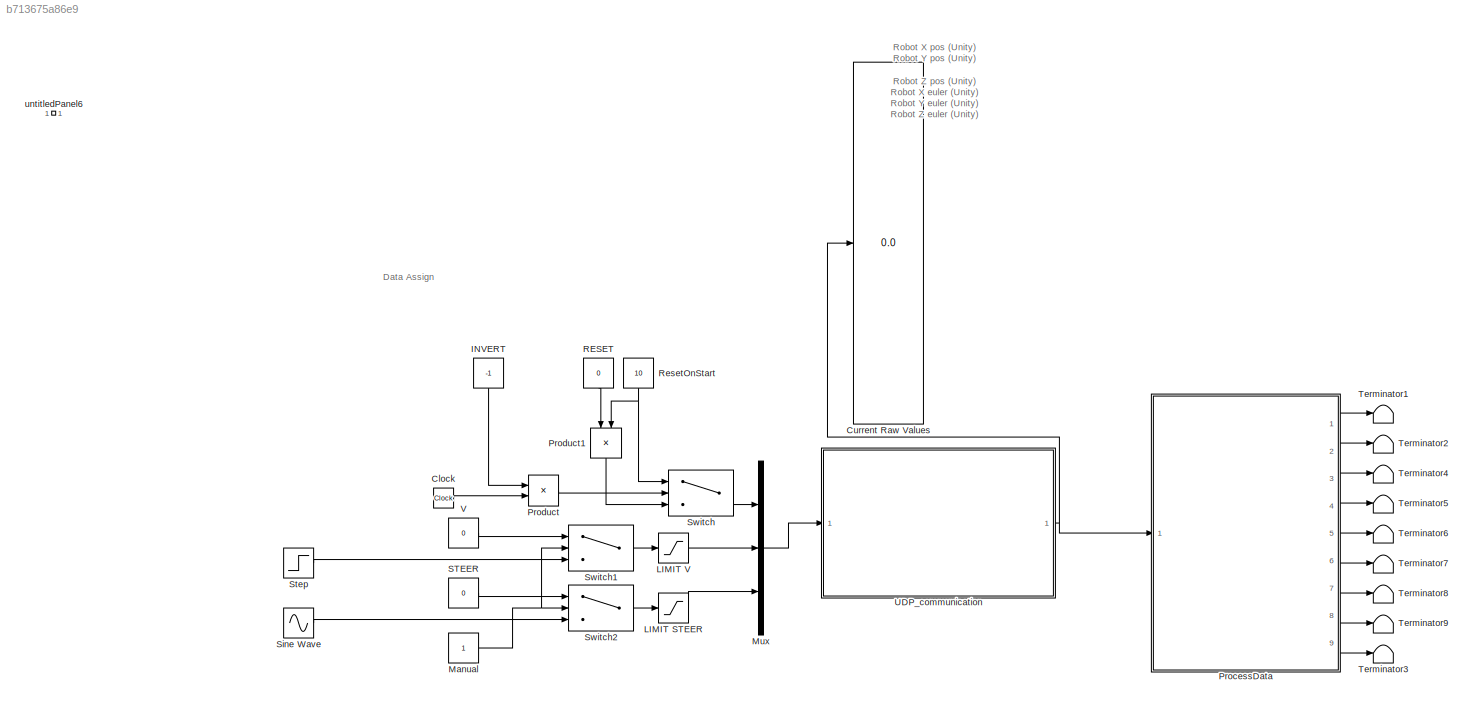
MODEL slx_b713675a86e9
KIND model
CONFIG AbsTol = auto
CONFIG EnableMultiTasking = off
CONFIG FixedStep = 1/model_frequency
CONFIG MaxStep = auto
CONFIG MinStep = auto
CONFIG RelTol = 1e-3
CONFIG SampleTimeConstraint = Unconstrained
CONFIG SolverName = FixedStepAuto
CONFIG StartTime = 0.0
CONFIG StopTime = inf
BLOCK [Clock] Clock
BLOCK [Display] Current Raw Values
  Decimation = 1
  NameLocation = top
  Ports = [1]
BLOCK [Constant] INVERT
  NameLocation = right
  Value = -1
BLOCK [Saturate] LIMIT STEER
  LowerLimit = steerLim(1)
  UpperLimit = steerLim(2)
BLOCK [Saturate] LIMIT V
  LowerLimit = velLim(1)
  UpperLimit = velLim(2)
BLOCK [Constant] Manual
BLOCK [Mux] Mux
  DisplayOption = bar
  Inputs = 3
  Ports = [3, 1]
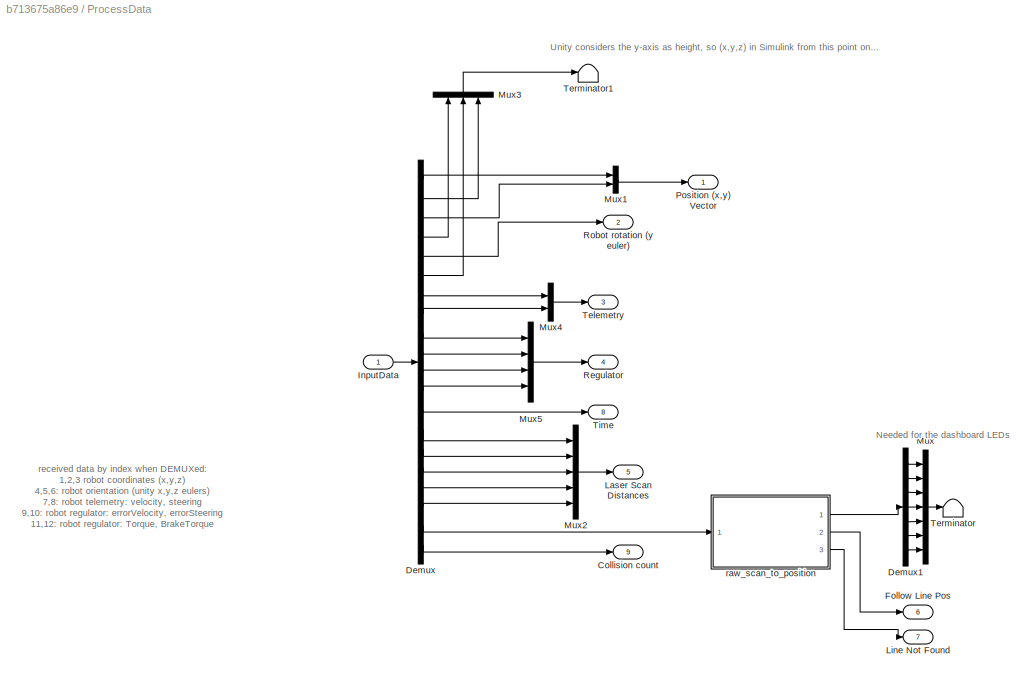
BLOCK [SubSystem] ProcessData
  Ports = [1, 9]
  RequestExecContextInheritance = off
BLOCK [Outport] ProcessData/Collision count
  NameLocation = top
  Port = 9
BLOCK [Demux] ProcessData/Demux
  Outputs = 20
  Ports = [1, 20]
BLOCK [Demux] ProcessData/Demux1
  Outputs = 7
  Ports = [1, 7]
BLOCK [Outport] ProcessData/Follow Line Pos
  NameLocation = top
  Port = 6
BLOCK [Inport] ProcessData/InputData
BLOCK [Outport] ProcessData/Laser Scan Distances
  Port = 5
BLOCK [Outport] ProcessData/Line Not Found
  Port = 7
BLOCK [Mux] ProcessData/Mux
  DisplayOption = bar
  Inputs = 7
  Ports = [7, 1]
BLOCK [Mux] ProcessData/Mux1
  DisplayOption = bar
  Inputs = 2
  Ports = [2, 1]
BLOCK [Mux] ProcessData/Mux2
  DisplayOption = bar
  Inputs = 5
  Ports = [5, 1]
BLOCK [Mux] ProcessData/Mux3
  DisplayOption = bar
  Inputs = 3
  NameLocation = right
  Ports = [3, 1]
BLOCK [Mux] ProcessData/Mux4
  DisplayOption = bar
  Inputs = 2
  Ports = [2, 1]
BLOCK [Mux] ProcessData/Mux5
  DisplayOption = bar
  Ports = [4, 1]
BLOCK [Outport] ProcessData/Position (x,y) Vector
  NameLocation = top
BLOCK [Outport] ProcessData/Regulator
  Port = 4
BLOCK [Outport] ProcessData/Robot rotation (y euler)
  NameLocation = top
  Port = 2
BLOCK [Outport] ProcessData/Telemetry
  Port = 3
BLOCK [Terminator] ProcessData/Terminator
BLOCK [Terminator] ProcessData/Terminator1
BLOCK [Outport] ProcessData/Time
  Port = 8
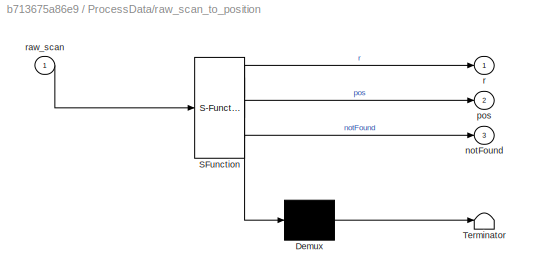
BLOCK [SubSystem] ProcessData/raw_scan_to_position
  ErrorFcn = Stateflow.Translate.translate
  PermitHierarchicalResolution = ExplicitOnly
  Ports = [1, 3]
  RequestExecContextInheritance = off
  SFBlockType = MATLAB Function
  TreatAsAtomicUnit = on
BLOCK [Demux] ProcessData/raw_scan_to_position/ Demux 
  Outputs = 1
  Ports = [1, 1]
BLOCK [S-Function] ProcessData/raw_scan_to_position/ SFunction 
  EnableBusSupport = on
  FunctionName = sf_sfun
  Parameters = rayDistance
  PortCounts = [1 4]
  Ports = [1, 4]
  SFcnIsStateOwnerBlock = off
  SFunctionDeploymentMode = off
  Tag = Stateflow S-Function 2
BLOCK [Terminator] ProcessData/raw_scan_to_position/ Terminator 
BLOCK [Outport] ProcessData/raw_scan_to_position/notFound
  Port = 3
BLOCK [Outport] ProcessData/raw_scan_to_position/pos
  Port = 2
BLOCK [Outport] ProcessData/raw_scan_to_position/r
BLOCK [Inport] ProcessData/raw_scan_to_position/raw_scan
BLOCK [Product] Product
  Ports = [2, 1]
BLOCK [Product] Product1
  NameLocation = left
  Ports = [2, 1]
BLOCK [Constant] RESET
  NameLocation = left
  Value = 0
BLOCK [Constant] ResetOnStart
  NameLocation = right
  Value = 10
BLOCK [Constant] STEER
  Value = 0
BLOCK [Sin] Sine Wave
  Amplitude = 40
  Frequency = 0.2
  Ports = [0, 1]
  SampleTime = 0
BLOCK [Step] Step
  SampleTime = 0
  Time = 2
BLOCK [Switch] Switch
  Criteria = u2 > Threshold
  InputSameDT = off
  SaturateOnIntegerOverflow = off
  Threshold = -0.5
BLOCK [Switch] Switch1
  InputSameDT = off
  SaturateOnIntegerOverflow = off
  Threshold = 0.5
BLOCK [Switch] Switch2
  InputSameDT = off
  SaturateOnIntegerOverflow = off
  Threshold = 0.5
BLOCK [Terminator] Terminator1
BLOCK [Terminator] Terminator2
BLOCK [Terminator] Terminator3
BLOCK [Terminator] Terminator4
BLOCK [Terminator] Terminator5
BLOCK [Terminator] Terminator6
BLOCK [Terminator] Terminator7
BLOCK [Terminator] Terminator8
BLOCK [Terminator] Terminator9
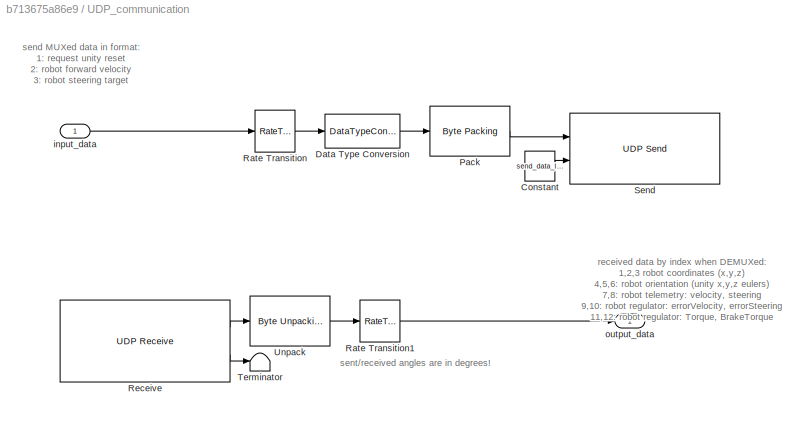
BLOCK [SubSystem] UDP_communication
  Ports = [1, 1]
  RequestExecContextInheritance = off
BLOCK [Constant] UDP_communication/Constant
  Value = send_data_length
BLOCK [DataTypeConversion] UDP_communication/Data Type Conversion
  OutDataTypeStr = single
  RndMeth = Floor
  SaturateOnIntegerOverflow = off
BLOCK [Reference] UDP_communication/Pack  REF=slrealtimeutilitieslib/Byte Packing
  Ports = [1, 1]
  SourceBlock = slrealtimeutilitieslib/Byte Packing
  SourceProductBaseCode = XP
  SourceType = slrealtimebytepacking
BLOCK [RateTransition] UDP_communication/Rate Transition
BLOCK [RateTransition] UDP_communication/Rate Transition1
BLOCK [Reference] UDP_communication/Receive  REF=slrealtimeiplib/UDP Receive
  Ports = [0, 2]
  SourceBlock = slrealtimeiplib/UDP Receive
  SourceProductBaseCode = XP
  SourceType = slrealtimeudpreceive
BLOCK [Reference] UDP_communication/Send  REF=slrealtimeiplib/UDP Send
  Ports = [2]
  SourceBlock = slrealtimeiplib/UDP Send
  SourceProductBaseCode = XP
  SourceType = slrealtimeudpsend
BLOCK [Terminator] UDP_communication/Terminator
BLOCK [Reference] UDP_communication/Unpack  REF=slrealtimeutilitieslib/Byte Unpacking
  Ports = [1, 1]
  SourceBlock = slrealtimeutilitieslib/Byte Unpacking
  SourceProductBaseCode = XP
  SourceType = slreraltimebytepacking
BLOCK [Inport] UDP_communication/input_data
BLOCK [Outport] UDP_communication/output_data
BLOCK [Constant] V
  Value = 0
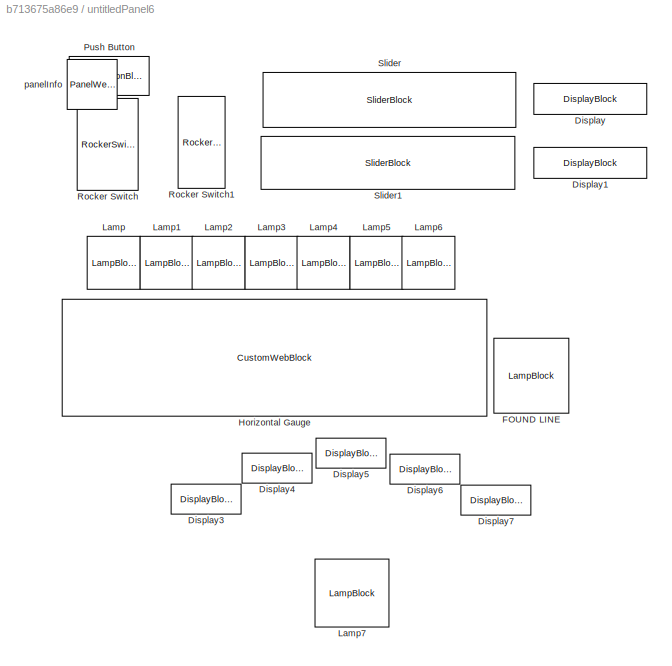
BLOCK [SubSystem] untitledPanel6
  IsWebBlockPanel = on
  Ports = []
  RequestExecContextInheritance = off
  Tag = HiddenForWebPanel
BLOCK [DisplayBlock] untitledPanel6/Display
  LabelPosition = Hide
  PanelInfo = {"panelId":"panelId-3b0286ef-9598-43d7-b16e-0edae3a5bc45","type":"panelChild","version":"2019b","zIndex":1500028}
  Tag = HiddenForWebPanel
  Transparency = 1
BLOCK [DisplayBlock] untitledPanel6/Display1
  LabelPosition = Hide
  PanelInfo = {"panelId":"panelId-3b0286ef-9598-43d7-b16e-0edae3a5bc45","type":"panelChild","version":"2019b","zIndex":1500030}
  Tag = HiddenForWebPanel
  Transparency = 1
BLOCK [DisplayBlock] untitledPanel6/Display3
  LabelPosition = Hide
  PanelInfo = {"panelId":"panelId-3b0286ef-9598-43d7-b16e-0edae3a5bc45","type":"panelChild","version":"2019b","zIndex":1500034}
  Tag = HiddenForWebPanel
  Transparency = 1
BLOCK [DisplayBlock] untitledPanel6/Display4
  LabelPosition = Hide
  PanelInfo = {"panelId":"panelId-3b0286ef-9598-43d7-b16e-0edae3a5bc45","type":"panelChild","version":"2019b","zIndex":1500036}
  Tag = HiddenForWebPanel
  Transparency = 1
BLOCK [DisplayBlock] untitledPanel6/Display5
  LabelPosition = Hide
  PanelInfo = {"panelId":"panelId-3b0286ef-9598-43d7-b16e-0edae3a5bc45","type":"panelChild","version":"2019b","zIndex":1500038}
  Tag = HiddenForWebPanel
  Transparency = 1
BLOCK [DisplayBlock] untitledPanel6/Display6
  LabelPosition = Hide
  PanelInfo = {"panelId":"panelId-3b0286ef-9598-43d7-b16e-0edae3a5bc45","type":"panelChild","version":"2019b","zIndex":1500040}
  Tag = HiddenForWebPanel
  Transparency = 1
BLOCK [DisplayBlock] untitledPanel6/Display7
  LabelPosition = Hide
  PanelInfo = {"panelId":"panelId-3b0286ef-9598-43d7-b16e-0edae3a5bc45","type":"panelChild","version":"2019b","zIndex":1500042}
  Tag = HiddenForWebPanel
  Transparency = 1
BLOCK [LampBlock] untitledPanel6/FOUND LINE
  NameLocation = top
  PanelInfo = {"panelId":"panelId-3b0286ef-9598-43d7-b16e-0edae3a5bc45","type":"panelChild","version":"2019b","zIndex":1500004}
  Tag = HiddenForWebPanel
BLOCK [CustomWebBlock] untitledPanel6/Horizontal Gauge
  Configuration = {"components":[{"name":"LinearScaleComponent","settings":{"bounds":{"max":0.3,"min":-0.3,"tickInterval":"auto"},"internalTickHeightScaleFactor":0.5,"labelColor":[250,245,199],"labelFont":{"font":"Arial","fontSize":12},"labelTransparency":1,"needleImage":{"size":[21,75],"src":"data:image\/svg+xml;base64,PHN2ZyB4bWxucz0iaHR0cDovL3d3dy53My5vcmcvMjAwMC9zdmciIHhtbG5zOnhsaW5rPSJodHRwOi8vd3d3LnczLm9yZy8x...<+3837ch>
  PanelInfo = {"panelId":"panelId-3b0286ef-9598-43d7-b16e-0edae3a5bc45","type":"panelChild","version":"2019b","zIndex":1500002}
  ShowInitialText = on
  Tag = HiddenForWebPanel
BLOCK [LampBlock] untitledPanel6/Lamp
  PanelInfo = {"panelId":"panelId-3b0286ef-9598-43d7-b16e-0edae3a5bc45","type":"panelChild","version":"2019b","zIndex":1500006}
  Tag = HiddenForWebPanel
BLOCK [LampBlock] untitledPanel6/Lamp1
  PanelInfo = {"panelId":"panelId-3b0286ef-9598-43d7-b16e-0edae3a5bc45","type":"panelChild","version":"2019b","zIndex":1500008}
  Tag = HiddenForWebPanel
BLOCK [LampBlock] untitledPanel6/Lamp2
  PanelInfo = {"panelId":"panelId-3b0286ef-9598-43d7-b16e-0edae3a5bc45","type":"panelChild","version":"2019b","zIndex":1500010}
  Tag = HiddenForWebPanel
BLOCK [LampBlock] untitledPanel6/Lamp3
  PanelInfo = {"panelId":"panelId-3b0286ef-9598-43d7-b16e-0edae3a5bc45","type":"panelChild","version":"2019b","zIndex":1500012}
  Tag = HiddenForWebPanel
BLOCK [LampBlock] untitledPanel6/Lamp4
  PanelInfo = {"panelId":"panelId-3b0286ef-9598-43d7-b16e-0edae3a5bc45","type":"panelChild","version":"2019b","zIndex":1500014}
  Tag = HiddenForWebPanel
BLOCK [LampBlock] untitledPanel6/Lamp5
  PanelInfo = {"panelId":"panelId-3b0286ef-9598-43d7-b16e-0edae3a5bc45","type":"panelChild","version":"2019b","zIndex":1500016}
  Tag = HiddenForWebPanel
BLOCK [LampBlock] untitledPanel6/Lamp6
  PanelInfo = {"panelId":"panelId-3b0286ef-9598-43d7-b16e-0edae3a5bc45","type":"panelChild","version":"2019b","zIndex":1500018}
  Tag = HiddenForWebPanel
BLOCK [LampBlock] untitledPanel6/Lamp7
  LabelPosition = Hide
  PanelInfo = {"panelId":"panelId-3b0286ef-9598-43d7-b16e-0edae3a5bc45","type":"panelChild","version":"2019b","zIndex":1500048}
  Tag = HiddenForWebPanel
BLOCK [PushButtonBlock] untitledPanel6/Push Button
  ButtonText = RESET
  OffValue = 0.000000
  PanelInfo = {"panelId":"panelId-3b0286ef-9598-43d7-b16e-0edae3a5bc45","type":"panelChild","version":"2019b","zIndex":1500022}
  Tag = HiddenForWebPanel
BLOCK [RockerSwitchBlock] untitledPanel6/Rocker Switch
  PanelInfo = {"panelId":"panelId-3b0286ef-9598-43d7-b16e-0edae3a5bc45","type":"panelChild","version":"2019b","zIndex":1500020}
  Tag = HiddenForWebPanel
BLOCK [RockerSwitchBlock] untitledPanel6/Rocker Switch1
  PanelInfo = {"panelId":"panelId-3b0286ef-9598-43d7-b16e-0edae3a5bc45","type":"panelChild","version":"2019b","zIndex":1500046}
  Tag = HiddenForWebPanel
BLOCK [SliderBlock] untitledPanel6/Slider
  PanelInfo = {"panelId":"panelId-3b0286ef-9598-43d7-b16e-0edae3a5bc45","type":"panelChild","version":"2019b","zIndex":1500024}
  ScaleMax = 5
  ScaleMin = -2
  Tag = HiddenForWebPanel
  TickInterval = 0.5
BLOCK [SliderBlock] untitledPanel6/Slider1
  PanelInfo = {"panelId":"panelId-3b0286ef-9598-43d7-b16e-0edae3a5bc45","type":"panelChild","version":"2019b","zIndex":1500026}
  ScaleMax = 30
  ScaleMin = -30
  Tag = HiddenForWebPanel
  TickInterval = 15
BLOCK [PanelWebBlock] untitledPanel6/panelInfo
  PanelInfo = {"compacted":false,"height":619,"isActiveTab":true,"labels":{"label2777103104":{"left":"434","settings":{"backgroundColor":"rgba(0, 0, 0, 0)","bold":true,"font":"Arial","fontColor":"black","fontSize":0.9,"italicized":false,"underlined":false},"text":"LINE FOUND?","top":"270"},"label4548952663":{"left":"178","settings":{"backgroundColor":"rgba(0, 0, 0, 0)","bold":true,"font":"Arial","fontColor":"bl...<+1412ch>
  PanelSnapshot = iVBORw0KGgoAAAANSUhEUgAAAmcAAAJrCAYAAAClcDRqAAAACXBIWXMAAA7EAAAOxAGVKw4bAAAgAElEQVR4nOzdd1QUV9sA8Gdmd7bvUpe29I4UAbFgQVHE3ruxa1SMGnuNvbfEWGP0jVGMsfeKvSP2iiLS61K395nvD4UPESkaQfD+zuEcnb1z587sAg/PbRi89+N1qiUGMB0AGgCAFSAIgiAIgiDVLQsDABh9nZoDAMtquDEIgiAIgiDfPex9xuwKDmAIcaDEvnw5jpNaDkmS9JpuHIIgCIIgyPcCx3E9iTOU9PddmViIA5Vdn5svIPUkjazp1iEIgiAIgnxnSJKkA6kW0OHdGDPw5ctppJ6kEQyGnMfnZ+I4rq/hNiIIgiAIgnw3SJKky2Uy...<+74092ch>
  Tag = HiddenForWebPanel
ANNOTATION (root): Robot X pos (Unity) Robot Y pos (Unity) Robot Z pos (Unity) Robot X euler (Unity) Robot Y euler (Unity) Robot Z euler (Unity) Telemetry: velocity Telemetry: steering Regulator: errorVelocity Regulator: errorSteering Regulator: Torque Regulator: BrakeTorque Unity sim time Lidar -60 Lidar -30 Lidar 0 Lidar +30 Lidar +60 Linefollow RawData Collision Count
ANNOTATION (root): Data Assign
ANNOTATION ProcessData: Unity considers the y-axis as height, so (x,y,z) in Simulink from this point onwards equals (x,z,y) in Unity
ANNOTATION ProcessData: received data by index when DEMUXed: 1,2,3 robot coordinates (x,y,z) 4,5,6: robot orientation (unity x,y,z eulers) 7,8: robot telemetry: velocity, steering 9,10: robot regulator: errorVelocity, errorSteering 11,12: robot regulator: Torque, BrakeTorque 13: Unity simulation time 14-18: Lidar results 19: Linefollow binary results
ANNOTATION ProcessData: Needed for the dashboard LEDs
ANNOTATION UDP_communication: received data by index when DEMUXed: 1,2,3 robot coordinates (x,y,z) 4,5,6: robot orientation (unity x,y,z eulers) 7,8: robot telemetry: velocity, steering 9,10: robot regulator: errorVelocity, errorSteering 11,12: robot regulator: Torque, BrakeTorque 13: Unity simulation time 14-18: Lidar results 19: Linefollow binary results 20: Collision count
ANNOTATION UDP_communication: send MUXed data in format: 1: request unity reset 2: robot forward velocity 3: robot steering target
ANNOTATION UDP_communication: sent/received angles are in degrees!
LINE Clock:1 -> Product:2
LINE INVERT:1 -> Product:1
LINE LIMIT STEER:1 -> Mux:3
LINE LIMIT V:1 -> Mux:2
NET Manual:1 -> Switch1:2, Switch2:2
LINE Mux:1 -> UDP_communication:1
LINE ProcessData/Demux1:1 -> ProcessData/Mux:1
LINE ProcessData/Demux1:2 -> ProcessData/Mux:2
LINE ProcessData/Demux1:3 -> ProcessData/Mux:3
LINE ProcessData/Demux1:4 -> ProcessData/Mux:4
LINE ProcessData/Demux1:5 -> ProcessData/Mux:5
LINE ProcessData/Demux1:6 -> ProcessData/Mux:6
LINE ProcessData/Demux1:7 -> ProcessData/Mux:7
LINE ProcessData/Demux:1 -> ProcessData/Mux1:1
LINE ProcessData/Demux:10 -> ProcessData/Mux5:2
LINE ProcessData/Demux:11 -> ProcessData/Mux5:3
LINE ProcessData/Demux:12 -> ProcessData/Mux5:4
LINE ProcessData/Demux:13 -> ProcessData/Time:1
LINE ProcessData/Demux:14 -> ProcessData/Mux2:1
LINE ProcessData/Demux:15 -> ProcessData/Mux2:2
LINE ProcessData/Demux:16 -> ProcessData/Mux2:3
LINE ProcessData/Demux:17 -> ProcessData/Mux2:4
LINE ProcessData/Demux:18 -> ProcessData/Mux2:5
LINE ProcessData/Demux:19 -> ProcessData/raw_scan_to_position:1
LINE ProcessData/Demux:2 -> ProcessData/Mux3:3
LINE ProcessData/Demux:20 -> ProcessData/Collision count:1
LINE ProcessData/Demux:3 -> ProcessData/Mux1:2
LINE ProcessData/Demux:4 -> ProcessData/Mux3:1
LINE ProcessData/Demux:5 -> ProcessData/Robot rotation (y euler):1
LINE ProcessData/Demux:6 -> ProcessData/Mux3:2
LINE ProcessData/Demux:7 -> ProcessData/Mux4:1
LINE ProcessData/Demux:8 -> ProcessData/Mux4:2
LINE ProcessData/Demux:9 -> ProcessData/Mux5:1
LINE ProcessData/InputData:1 -> ProcessData/Demux:1
LINE ProcessData/Mux1:1 -> ProcessData/Position (x,y) Vector:1
LINE ProcessData/Mux2:1 -> ProcessData/Laser Scan Distances:1
LINE ProcessData/Mux3:1 -> ProcessData/Terminator1:1
LINE ProcessData/Mux4:1 -> ProcessData/Telemetry:1
LINE ProcessData/Mux5:1 -> ProcessData/Regulator:1
LINE ProcessData/Mux:1 -> ProcessData/Terminator:1
LINE ProcessData/raw_scan_to_position:1 -> ProcessData/Demux1:1
LINE ProcessData/raw_scan_to_position:2 -> ProcessData/Follow Line Pos:1
LINE ProcessData/raw_scan_to_position:3 -> ProcessData/Line Not Found:1
LINE ProcessData:1 -> Terminator1:1
LINE ProcessData:2 -> Terminator2:1
LINE ProcessData:3 -> Terminator4:1
LINE ProcessData:4 -> Terminator5:1
LINE ProcessData:5 -> Terminator6:1
LINE ProcessData:6 -> Terminator7:1
LINE ProcessData:7 -> Terminator8:1
LINE ProcessData:8 -> Terminator9:1
LINE ProcessData:9 -> Terminator3:1
LINE Product1:1 -> Switch:3
LINE Product:1 -> Switch:2
LINE RESET:1 -> Product1:1
NET ResetOnStart:1 -> Product1:2, Switch:1
LINE STEER:1 -> Switch2:1
LINE Sine Wave:1 -> Switch2:3
LINE Step:1 -> Switch1:3
LINE Switch1:1 -> LIMIT V:1
LINE Switch2:1 -> LIMIT STEER:1
LINE Switch:1 -> Mux:1
LINE UDP_communication/Constant:1 -> UDP_communication/Send:2
LINE UDP_communication/Data Type Conversion:1 -> UDP_communication/Pack:1
LINE UDP_communication/Pack:1 -> UDP_communication/Send:1
LINE UDP_communication/Rate Transition1:1 -> UDP_communication/output_data:1
LINE UDP_communication/Rate Transition:1 -> UDP_communication/Data Type Conversion:1
LINE UDP_communication/Receive:1 -> UDP_communication/Unpack:1
LINE UDP_communication/Receive:2 -> UDP_communication/Terminator:1
LINE UDP_communication/Unpack:1 -> UDP_communication/Rate Transition1:1
LINE UDP_communication/input_data:1 -> UDP_communication/Rate Transition:1
NET UDP_communication:1 -> Current Raw Values:1, ProcessData:1
LINE V:1 -> Switch1:1
note: NET lines group one-source signal fan-out (src -> all destinations, sorted); 1:1 wires keep LINE
CHART ProcessData/raw_scan_to_position states=1 transitions=1
  STATE_LABEL 'eML_blk_kernel()'
  STATE_LABEL 'SCRIPT:\nfunction [r,pos,notFound] = fcn(raw_scan,rayDistance)\nraw_scan=round(raw_scan);\nresult=arrayfun(@(x) mod(floor(raw_scan/10^x),10),floor(log10(raw_scan)):-1:0);\nif length(result)<7\n    tempZeros=zeros(1,7-length(result));\n    result=[tempZeros,result];\nend\nr=zeros(1,7);\npos=0;\ncount=0;\nfor ii=1:7\n    r(ii)=result(ii);\n    pos=pos+r(ii)*(-4+ii)*rayDistance;\n    count=count+r(ii);\nend\nif coun...<+79ch>'
CHART  states=0 transitions=0
